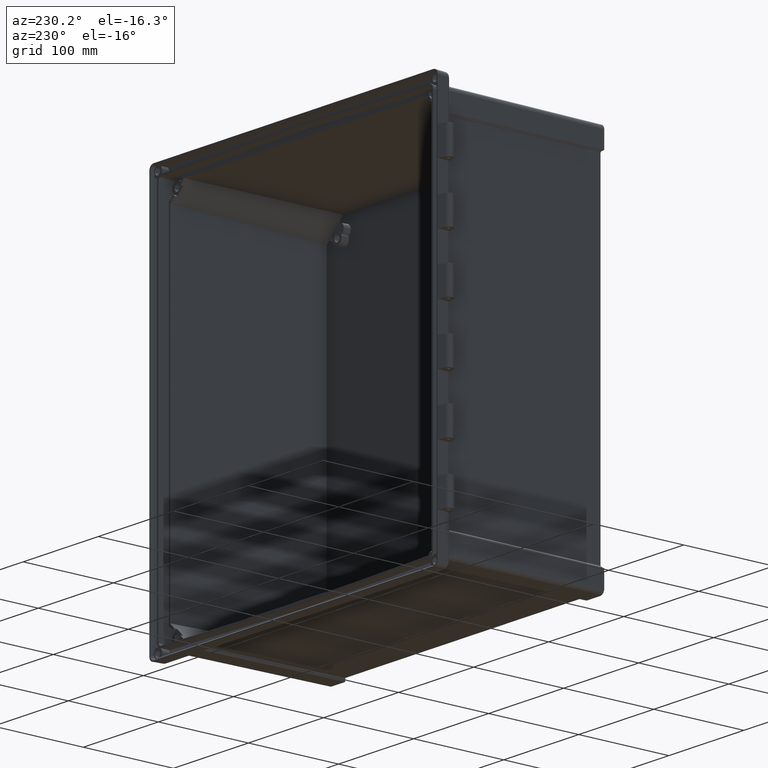
[diagram: clean part render]
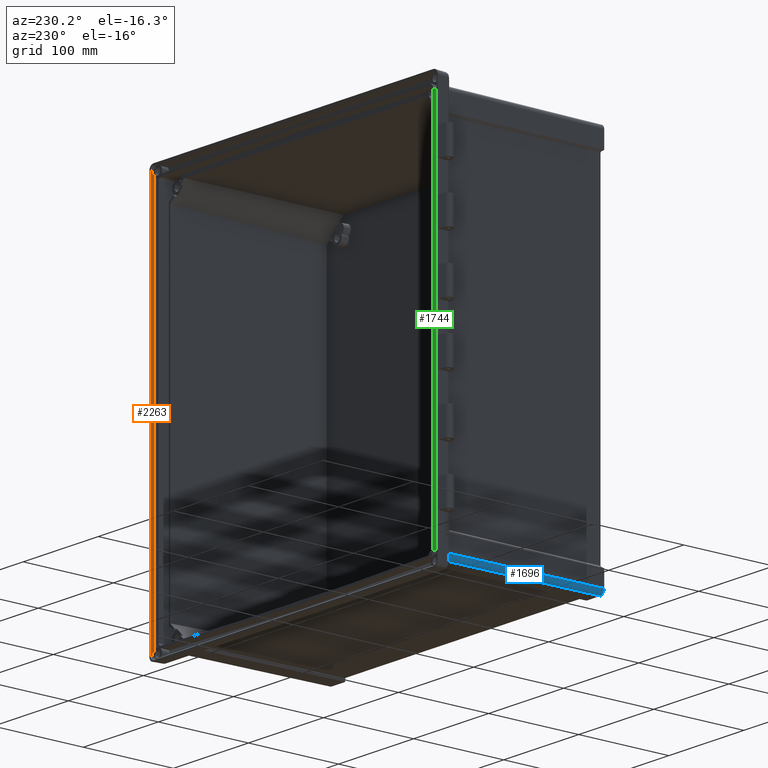
[diagram: same view with three faces highlighted in distinct colors, each labeled with its STEP entity id]
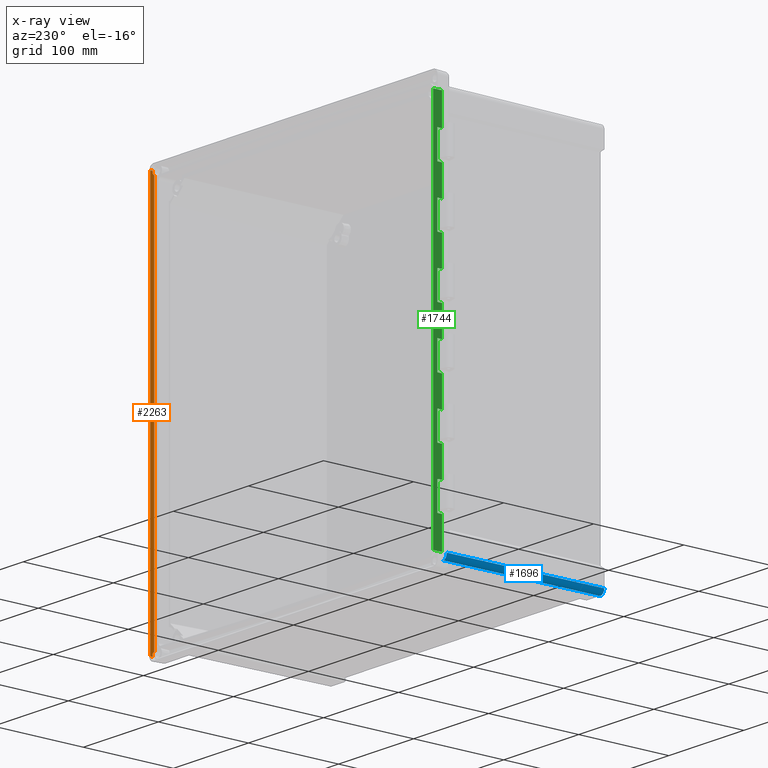
[diagram: x-ray of the same camera — body ghosted, the three highlighted faces saturated]
A machine part, auxiliary view with three faces highlighted in distinct colors.
The next image is the same camera in x-ray (body ghosted, the three faces saturated) — at least one of them is partly hidden behind the body in this view.
Their STEP definitions:

[orange] entity #2263 — the highlighted planar face has unit normal (0.829, -0.5592, 0).
#24 = CARTESIAN_POINT ( 'NONE',  ( 189.5581841873384400, -1.838356594176322700, 215.8485475705510300 ) ) ;
#134 = B_SPLINE_CURVE_WITH_KNOTS ( 'NONE', 3,
 ( #14309, #11943, #5299, #15557 ),
 .UNSPECIFIED., .F., .F.,
 ( 4, 4 ),
 ( 0.3467831372797227100, 1.000000000000000000 ),
 .UNSPECIFIED. ) ;
#462 = VECTOR ( 'NONE', #3768, 1000.000000000000000 ) ;
#1180 = CARTESIAN_POINT ( 'NONE',  ( 190.7981713671038300, 0.0000000000000000000, 215.8485475705510600 ) ) ;
#1328 = CARTESIAN_POINT ( 'NONE',  ( 189.7712524585122400, -1.522469891705538400, 212.9497346746053100 ) ) ;
#2263 = ADVANCED_FACE ( 'NONE', ( #13526 ), #15230, .F. ) ;
#2632 = VECTOR ( 'NONE', #7886, 1000.000000000000000 ) ;
#3067 = ORIENTED_EDGE ( 'NONE', *, *, #12296, .F. ) ;
#3246 = LINE ( 'NONE', #15572, #2632 ) ;
#3472 = CARTESIAN_POINT ( 'NONE',  ( 189.5581842328845400, -1.838356526651445700, -215.8485475705512900 ) ) ;
#3557 = CARTESIAN_POINT ( 'NONE',  ( 189.5581841873384400, -1.838356594176322700, 215.8485475705510300 ) ) ;
#3768 = DIRECTION ( 'NONE',  ( -0.0000000000000000000, -0.0000000000000000000, -1.000000000000000000 ) ) ;
#3935 = CARTESIAN_POINT ( 'NONE',  ( 188.8998933976687600, -2.814312824871977100, -215.9468255399860400 ) ) ;
#4193 = B_SPLINE_CURVE_WITH_KNOTS ( 'NONE', 3,
 ( #10503, #10396, #10444, #9057 ),
 .UNSPECIFIED., .F., .F.,
 ( 4, 4 ),
 ( 0.0000000000000000000, 0.6532168387270402800 ),
 .UNSPECIFIED. ) ;
#4203 = VERTEX_POINT ( 'NONE', #5048 ) ;
#5048 = CARTESIAN_POINT ( 'NONE',  ( 189.5581842328845400, -1.838356526651445700, -215.8485475705512900 ) ) ;
#5299 = CARTESIAN_POINT ( 'NONE',  ( 190.3848423071820300, -0.6127855313921054500, 215.8485475705510600 ) ) ;
#5525 = VERTEX_POINT ( 'NONE', #1180 ) ;
#5581 = CARTESIAN_POINT ( 'NONE',  ( 188.8998933976687600, -2.814312824871977100, -211.7367631637008300 ) ) ;
#5729 = VERTEX_POINT ( 'NONE', #5581 ) ;
#7052 = ORIENTED_EDGE ( 'NONE', *, *, #13855, .T. ) ;
#7314 = CARTESIAN_POINT ( 'NONE',  ( 189.7712524505759300, -1.522469903471579000, -212.9497346635576500 ) ) ;
#7886 = DIRECTION ( 'NONE',  ( 0.0000000000000000000, 0.0000000000000000000, 1.000000000000000000 ) ) ;
#8795 = DIRECTION ( 'NONE',  ( 0.8290375725550402900, -0.5591929034707490100, 0.0000000000000000000 ) ) ;
#8846 = CARTESIAN_POINT ( 'NONE',  ( 190.7981713671038100, 0.0000000000000000000, -208.5000000000000300 ) ) ;
#9050 = CARTESIAN_POINT ( 'NONE',  ( 190.0073293579486600, -1.172471495033557500, 214.4243068339385200 ) ) ;
#9057 = CARTESIAN_POINT ( 'NONE',  ( 189.5581842328845400, -1.838356526651445700, -215.8485475705512900 ) ) ;
#9371 = EDGE_LOOP ( 'NONE', ( #11021, #15266, #3067, #7052, #16147, #11417 ) ) ;
#9497 = VERTEX_POINT ( 'NONE', #15625 ) ;
#9766 = VERTEX_POINT ( 'NONE', #13836 ) ;
#10338 = EDGE_CURVE ( 'NONE', #9766, #5729, #14154, .T. ) ;
#10396 = CARTESIAN_POINT ( 'NONE',  ( 190.3848423223639700, -0.6127855088839471200, -215.8485475705510300 ) ) ;
#10444 = CARTESIAN_POINT ( 'NONE',  ( 189.9715132776241300, -1.225571017767894700, -215.8485475705510300 ) ) ;
#10503 = CARTESIAN_POINT ( 'NONE',  ( 190.7981713671038300, 0.0000000000000000000, -215.8485475705510300 ) ) ;
#10667 = EDGE_CURVE ( 'NONE', #5729, #4203, #15563, .T. ) ;
#11021 = ORIENTED_EDGE ( 'NONE', *, *, #11730, .F. ) ;
#11111 = CARTESIAN_POINT ( 'NONE',  ( 188.8998933976687600, -2.814312824871977100, -211.7367631637008300 ) ) ;
#11417 = ORIENTED_EDGE ( 'NONE', *, *, #10338, .F. ) ;
#11470 = AXIS2_PLACEMENT_3D ( 'NONE', #8846, #8795, #16645 ) ;
#11730 = EDGE_CURVE ( 'NONE', #15263, #9766, #12050, .T. ) ;
#11943 = CARTESIAN_POINT ( 'NONE',  ( 189.9715132472602200, -1.225571062784211400, 215.8485475705510300 ) ) ;
#12050 =( BOUNDED_CURVE ( )  B_SPLINE_CURVE ( 3, ( #24, #9050, #1328, #15215 ),
 .UNSPECIFIED., .F., .F. ) 
 B_SPLINE_CURVE_WITH_KNOTS ( ( 4, 4 ),
 ( 5.977795267660519100, 6.905973540432675000 ),
 .UNSPECIFIED. ) 
 CURVE ( )  GEOMETRIC_REPRESENTATION_ITEM ( )  RATIONAL_B_SPLINE_CURVE ( ( 1.000000000000000000, 0.9294864311827726300, 0.9294864311827726300, 1.000000000000000000 ) ) 
 REPRESENTATION_ITEM ( '' )  );
#12296 = EDGE_CURVE ( 'NONE', #9497, #5525, #3246, .T. ) ;
#13526 = FACE_OUTER_BOUND ( 'NONE', #9371, .T. ) ;
#13836 = CARTESIAN_POINT ( 'NONE',  ( 188.8998933976687600, -2.814312824871977100, 211.7367631637008000 ) ) ;
#13855 = EDGE_CURVE ( 'NONE', #9497, #4203, #4193, .T. ) ;
#14154 = LINE ( 'NONE', #3935, #462 ) ;
#14309 = CARTESIAN_POINT ( 'NONE',  ( 189.5581841873384400, -1.838356594176322700, 215.8485475705510300 ) ) ;
#15215 = CARTESIAN_POINT ( 'NONE',  ( 188.8998933976687600, -2.814312824871977100, 211.7367631637008000 ) ) ;
#15230 = PLANE ( 'NONE',  #11470 ) ;
#15263 = VERTEX_POINT ( 'NONE', #3557 ) ;
#15266 = ORIENTED_EDGE ( 'NONE', *, *, #16064, .T. ) ;
#15557 = CARTESIAN_POINT ( 'NONE',  ( 190.7981713671038300, 0.0000000000000000000, 215.8485475705510600 ) ) ;
#15563 =( BOUNDED_CURVE ( )  B_SPLINE_CURVE ( 3, ( #11111, #7314, #16242, #3472 ),
 .UNSPECIFIED., .F., .F. ) 
 B_SPLINE_CURVE_WITH_KNOTS ( ( 4, 4 ),
 ( 5.660397073926502800, 6.588575338843035000 ),
 .UNSPECIFIED. ) 
 CURVE ( )  GEOMETRIC_REPRESENTATION_ITEM ( )  RATIONAL_B_SPLINE_CURVE ( ( 1.000000000000000000, 0.9294864323548539500, 0.9294864323548539500, 1.000000000000000000 ) ) 
 REPRESENTATION_ITEM ( '' )  );
#15572 = CARTESIAN_POINT ( 'NONE',  ( 190.7981713671038100, 0.0000000000000000000, 215.9468255399860700 ) ) ;
#15625 = CARTESIAN_POINT ( 'NONE',  ( 190.7981713671038300, 0.0000000000000000000, -215.8485475705510300 ) ) ;
#16064 = EDGE_CURVE ( 'NONE', #15263, #5525, #134, .T. ) ;
#16147 = ORIENTED_EDGE ( 'NONE', *, *, #10667, .F. ) ;
#16242 = CARTESIAN_POINT ( 'NONE',  ( 190.0073293536559900, -1.172471501397745400, -214.4243068085335400 ) ) ;
#16645 = DIRECTION ( 'NONE',  ( 0.5591929034707490100, 0.8290375725550402900, 0.0000000000000000000 ) ) ;

[blue] entity #1696 — the highlighted cylindrical surface (edge-blend (fillet) strip) has radius 5.5 mm, axis along (-0.0087, 0.9999, -0.0087).
#83 = VERTEX_POINT ( 'NONE', #2803 ) ;
#362 = DIRECTION ( 'NONE',  ( 0.0000000000000000000, 0.008726535498374132400, 0.9999619230641713100 ) ) ;
#443 = ORIENTED_EDGE ( 'NONE', *, *, #11407, .F. ) ;
#1125 = CARTESIAN_POINT ( 'NONE',  ( -182.1399299418479500, -15.78523649444208100, -210.7175081007526100 ) ) ;
#1696 = ADVANCED_FACE ( 'NONE', ( #15703 ), #16314, .T. ) ;
#2295 = CARTESIAN_POINT ( 'NONE',  ( -184.8494450719406100, -15.41598042782445800, -208.7869165057000200 ) ) ;
#2471 = CARTESIAN_POINT ( 'NONE',  ( -182.5378153881771100, -15.74699823450821700, -210.5734923160550500 ) ) ;
#2803 = CARTESIAN_POINT ( 'NONE',  ( -185.9675407919649200, -15.17832184595812500, -205.4677502151118100 ) ) ;
#3383 = VERTEX_POINT ( 'NONE', #12250 ) ;
#3467 = LINE ( 'NONE', #8430, #14312 ) ;
#3523 = CARTESIAN_POINT ( 'NONE',  ( -185.5814359832609200, -15.26039095654051000, -207.8238858302422300 ) ) ;
#3760 = CARTESIAN_POINT ( 'NONE',  ( -183.2920237207613600, -15.66403469148474800, -210.1989809831881100 ) ) ;
#3785 = EDGE_LOOP ( 'NONE', ( #9993, #13639, #8654, #7060, #443 ) ) ;
#4009 = VERTEX_POINT ( 'NONE', #2295 ) ;
#4674 = B_SPLINE_CURVE_WITH_KNOTS ( 'NONE', 3,
 ( #8854, #11452, #13875, #11227, #3760, #2471, #1125, #4909, #12529, #8799 ),
 .UNSPECIFIED., .F., .F.,
 ( 4, 2, 2, 2, 4 ),
 ( 2.780973288783981700E-017, 0.001267848651906167300, 0.002535697303812306900, 0.003803545955718446400, 0.005071394607624586000 ),
 .UNSPECIFIED. ) ;
#4701 = AXIS2_PLACEMENT_3D ( 'NONE', #14483, #15781, #362 ) ;
#4909 = CARTESIAN_POINT ( 'NONE',  ( -181.3095735282356600, -15.85973794767242900, -210.9125559187355900 ) ) ;
#5058 = CARTESIAN_POINT ( 'NONE',  ( -185.9675407919649200, -15.17832184595812500, -205.4677502151118100 ) ) ;
#5096 = CARTESIAN_POINT ( 'NONE',  ( -184.4296775048489700, -191.4000000000000100, -203.9298869279958200 ) ) ;
#5522 = CARTESIAN_POINT ( 'NONE',  ( -185.9790398438129300, -13.86066101692819800, -205.4792492669597800 ) ) ;
#6387 = EDGE_CURVE ( 'NONE', #4009, #6973, #4674, .T. ) ;
#6807 = CARTESIAN_POINT ( 'NONE',  ( -184.4296775048489700, -191.4000000000000100, -207.1516404672779600 ) ) ;
#6973 = VERTEX_POINT ( 'NONE', #16223 ) ;
#7060 = ORIENTED_EDGE ( 'NONE', *, *, #6387, .T. ) ;
#8150 = DIRECTION ( 'NONE',  ( 0.008726203243944196500, -0.9999238504775704900, 0.008726203243944236400 ) ) ;
#8430 = CARTESIAN_POINT ( 'NONE',  ( -180.4496703296807700, -17.25007151201291600, -210.9494609065334900 ) ) ;
#8654 = ORIENTED_EDGE ( 'NONE', *, *, #16296, .F. ) ;
#8799 = CARTESIAN_POINT ( 'NONE',  ( -180.4611737478569200, -15.93191035133308600, -210.9609643247096400 ) ) ;
#8854 = CARTESIAN_POINT ( 'NONE',  ( -184.8494450719406100, -15.41598042782445800, -208.7869165057000200 ) ) ;
#9068 = EDGE_CURVE ( 'NONE', #83, #9360, #14577, .T. ) ;
#9360 = VERTEX_POINT ( 'NONE', #5096 ) ;
#9993 = ORIENTED_EDGE ( 'NONE', *, *, #10507, .F. ) ;
#10507 = EDGE_CURVE ( 'NONE', #9360, #3383, #14523, .T. ) ;
#10679 = CARTESIAN_POINT ( 'NONE',  ( -182.1516404672781600, -191.4000000000000100, -209.4296775048487400 ) ) ;
#11227 = CARTESIAN_POINT ( 'NONE',  ( -183.6528740278698100, -15.61861258000945300, -209.9645107338429300 ) ) ;
#11407 = EDGE_CURVE ( 'NONE', #3383, #6973, #3467, .T. ) ;
#11452 = CARTESIAN_POINT ( 'NONE',  ( -184.5921602001369600, -15.47066801554474900, -209.1254087192593500 ) ) ;
#11786 =( BOUNDED_CURVE ( )  B_SPLINE_CURVE ( 3, ( #15210, #3523, #16464, #5058 ),
 .UNSPECIFIED., .F., .F. ) 
 B_SPLINE_CURVE_WITH_KNOTS ( ( 4, 4 ),
 ( 5.674198576167061200, 6.322526357496623300 ),
 .UNSPECIFIED. ) 
 CURVE ( )  GEOMETRIC_REPRESENTATION_ITEM ( )  RATIONAL_B_SPLINE_CURVE ( ( 1.000000000000000000, 0.9652782481327500900, 0.9652782481327500900, 1.000000000000000000 ) ) 
 REPRESENTATION_ITEM ( '' )  );
#12250 = CARTESIAN_POINT ( 'NONE',  ( -178.9298869279959900, -191.4000000000000100, -209.4296775048487400 ) ) ;
#12529 = CARTESIAN_POINT ( 'NONE',  ( -180.8882911834568600, -15.89505826412070500, -210.9612859280025500 ) ) ;
#13639 = ORIENTED_EDGE ( 'NONE', *, *, #9068, .F. ) ;
#13749 = VECTOR ( 'NONE', #8150, 1000.000000000000000 ) ;
#13875 = CARTESIAN_POINT ( 'NONE',  ( -184.3009426615563800, -15.52207892145244400, -209.4281575681194200 ) ) ;
#14312 = VECTOR ( 'NONE', #14813, 1000.000000000000000 ) ;
#14483 = CARTESIAN_POINT ( 'NONE',  ( -180.4496703296807700, -17.20207556677186400, -205.4496703296805700 ) ) ;
#14485 = CARTESIAN_POINT ( 'NONE',  ( -184.4296775048489700, -191.4000000000000100, -203.9298869279958200 ) ) ;
#14523 =( BOUNDED_CURVE ( )  B_SPLINE_CURVE ( 3, ( #14485, #6807, #10679, #15783 ),
 .UNSPECIFIED., .F., .F. ) 
 B_SPLINE_CURVE_WITH_KNOTS ( ( 4, 4 ),
 ( 5.497825219993078600, 7.068545394366094700 ),
 .UNSPECIFIED. ) 
 CURVE ( )  GEOMETRIC_REPRESENTATION_ITEM ( )  RATIONAL_B_SPLINE_CURVE ( ( 1.000000000000000000, 0.8047558030806119000, 0.8047558030806119000, 1.000000000000000000 ) ) 
 REPRESENTATION_ITEM ( '' )  );
#14577 = LINE ( 'NONE', #5522, #13749 ) ;
#14813 = DIRECTION ( 'NONE',  ( -0.008726203243944198300, 0.9999238504775704900, -0.008726203243944236400 ) ) ;
#15210 = CARTESIAN_POINT ( 'NONE',  ( -184.8494450719406100, -15.41598042782445800, -208.7869165057000200 ) ) ;
#15703 = FACE_OUTER_BOUND ( 'NONE', #3785, .T. ) ;
#15781 = DIRECTION ( 'NONE',  ( -0.008726203243944198300, 0.9999238504775704900, -0.008726203243944236400 ) ) ;
#15783 = CARTESIAN_POINT ( 'NONE',  ( -178.9298869279959900, -191.4000000000000100, -209.4296775048487400 ) ) ;
#16223 = CARTESIAN_POINT ( 'NONE',  ( -180.4611737478569200, -15.93191035133308600, -210.9609643247096400 ) ) ;
#16296 = EDGE_CURVE ( 'NONE', #4009, #83, #11786, .T. ) ;
#16314 = CYLINDRICAL_SURFACE ( 'NONE', #4701, 5.499999999999988500 ) ;
#16464 = CARTESIAN_POINT ( 'NONE',  ( -185.9675407919649200, -15.17832184595812700, -206.6776994682584000 ) ) ;

[green] entity #1744 — the highlighted planar face has unit normal (-1, 0.0087, -0).
#152 = CARTESIAN_POINT ( 'NONE',  ( -184.0290792182383100, -6.389289219213843300, -141.0999999999999900 ) ) ;
#203 = CARTESIAN_POINT ( 'NONE',  ( -184.0290792182383100, -6.389289219213843300, 171.4000000000000100 ) ) ;
#301 = EDGE_CURVE ( 'NONE', #9229, #10463, #13098, .T. ) ;
#323 = CARTESIAN_POINT ( 'NONE',  ( -183.9995013393175900, -3.000000000000000000, 214.9277636626388500 ) ) ;
#492 = CARTESIAN_POINT ( 'NONE',  ( -184.0290792182382500, -6.389289219213853100, -141.0999999999999700 ) ) ;
#754 = VERTEX_POINT ( 'NONE', #8051 ) ;
#858 = VERTEX_POINT ( 'NONE', #4549 ) ;
#1045 = CARTESIAN_POINT ( 'NONE',  ( -184.0290792182383100, -6.389289219213843300, 46.39999999999999900 ) ) ;
#1211 = VERTEX_POINT ( 'NONE', #15983 ) ;
#1228 = VECTOR ( 'NONE', #2649, 1000.000000000000000 ) ;
#1276 = CARTESIAN_POINT ( 'NONE',  ( -183.9680683551406200, 0.6018632263667831300, -205.1040137082033800 ) ) ;
#1301 = CARTESIAN_POINT ( 'NONE',  ( -184.0736057796017600, -11.49152778075238900, 214.9277636626388500 ) ) ;
#1417 = ORIENTED_EDGE ( 'NONE', *, *, #5571, .T. ) ;
#1557 = CARTESIAN_POINT ( 'NONE',  ( -184.0736057796017600, -11.49152778075238900, 205.2077250463774200 ) ) ;
#1680 = VECTOR ( 'NONE', #9187, 1000.000000000000000 ) ;
#1744 = ADVANCED_FACE ( 'NONE', ( #6471 ), #4163, .T. ) ;
#2001 = CARTESIAN_POINT ( 'NONE',  ( -184.0290792182383100, -6.389289219213843300, 46.39999999999999900 ) ) ;
#2050 = EDGE_CURVE ( 'NONE', #9620, #4819, #3101, .T. ) ;
#2052 = DIRECTION ( 'NONE',  ( 0.008726535498373265100, 0.9999619230641713100, -0.0000000000000000000 ) ) ;
#2160 = CARTESIAN_POINT ( 'NONE',  ( -184.0290792182383100, -6.389289219213843300, -16.10000000000000100 ) ) ;
#2167 = ORIENTED_EDGE ( 'NONE', *, *, #5306, .F. ) ;
#2213 = VERTEX_POINT ( 'NONE', #16696 ) ;
#2314 = VECTOR ( 'NONE', #14335, 1000.000000000000000 ) ;
#2438 = VECTOR ( 'NONE', #5147, 1000.000000000000000 ) ;
#2468 = DIRECTION ( 'NONE',  ( -1.328265622643246300E-016, 2.823315737335354300E-017, 1.000000000000000000 ) ) ;
#2524 = VERTEX_POINT ( 'NONE', #3296 ) ;
#2579 = EDGE_CURVE ( 'NONE', #5071, #14822, #2681, .T. ) ;
#2643 = EDGE_CURVE ( 'NONE', #10065, #14719, #7332, .T. ) ;
#2649 = DIRECTION ( 'NONE',  ( 0.008726535498373265100, 0.9999619230641713100, -0.0000000000000000000 ) ) ;
#2676 = VECTOR ( 'NONE', #3980, 1000.000000000000000 ) ;
#2681 = LINE ( 'NONE', #1045, #8748 ) ;
#2744 = LINE ( 'NONE', #15661, #6995 ) ;
#2778 = ORIENTED_EDGE ( 'NONE', *, *, #11195, .T. ) ;
#2799 = CARTESIAN_POINT ( 'NONE',  ( -184.0290792182383100, -6.389289219213843300, -171.3499999999999900 ) ) ;
#2812 = DIRECTION ( 'NONE',  ( -1.328265622643246300E-016, 2.823315737335354300E-017, 1.000000000000000000 ) ) ;
#2827 = LINE ( 'NONE', #15050, #5467 ) ;
#2868 = LINE ( 'NONE', #2799, #16162 ) ;
#2910 = EDGE_CURVE ( 'NONE', #754, #8821, #9375, .T. ) ;
#3040 = ORIENTED_EDGE ( 'NONE', *, *, #13911, .T. ) ;
#3101 = LINE ( 'NONE', #12201, #16399 ) ;
#3167 = ORIENTED_EDGE ( 'NONE', *, *, #9990, .T. ) ;
#3207 = CARTESIAN_POINT ( 'NONE',  ( -184.0290792182383100, -6.389289219213843300, 16.14999999999999900 ) ) ;
#3296 = CARTESIAN_POINT ( 'NONE',  ( -183.9881564111895500, -1.700000000000000200, -205.1237541859038900 ) ) ;
#3297 = DIRECTION ( 'NONE',  ( -0.0000000000000000000, -0.0000000000000000000, -1.000000000000000000 ) ) ;
#3329 = DIRECTION ( 'NONE',  ( -0.0000000000000000000, -0.0000000000000000000, -1.000000000000000000 ) ) ;
#3393 = CARTESIAN_POINT ( 'NONE',  ( -184.0736057796017300, -11.49152778075240100, 108.8999999999999900 ) ) ;
#3444 = VERTEX_POINT ( 'NONE', #3207 ) ;
#3473 = EDGE_CURVE ( 'NONE', #15334, #2524, #9953, .T. ) ;
#3520 = LINE ( 'NONE', #4227, #2314 ) ;
#3641 = VECTOR ( 'NONE', #2812, 1000.000000000000000 ) ;
#3675 = CARTESIAN_POINT ( 'NONE',  ( -184.0736057796017300, -11.49152778075240100, 171.4000000000000100 ) ) ;
#3822 = LINE ( 'NONE', #15879, #6047 ) ;
#3894 = CARTESIAN_POINT ( 'NONE',  ( -184.0736057796017300, -11.49152778075240100, 46.39999999999999900 ) ) ;
#3980 = DIRECTION ( 'NONE',  ( -0.0000000000000000000, -0.0000000000000000000, -1.000000000000000000 ) ) ;
#3995 = EDGE_CURVE ( 'NONE', #15607, #9194, #13494, .T. ) ;
#4163 = PLANE ( 'NONE',  #16122 ) ;
#4227 = CARTESIAN_POINT ( 'NONE',  ( -184.0736057796017600, -11.49152778075238900, 214.9277636626388500 ) ) ;
#4331 = CARTESIAN_POINT ( 'NONE',  ( -184.0290792182383100, -6.389289219213843300, 108.8999999999999900 ) ) ;
#4444 = LINE ( 'NONE', #15622, #3641 ) ;
#4513 = ORIENTED_EDGE ( 'NONE', *, *, #4675, .T. ) ;
#4545 = CARTESIAN_POINT ( 'NONE',  ( -184.0290792182382500, -6.389289219213852200, -108.8500000000000400 ) ) ;
#4549 = CARTESIAN_POINT ( 'NONE',  ( -184.0736057796017300, -11.49152778075240100, 16.14999999999999900 ) ) ;
#4572 = LINE ( 'NONE', #2160, #15027 ) ;
#4656 = DIRECTION ( 'NONE',  ( 0.008726535498373265100, 0.9999619230641713100, -0.0000000000000000000 ) ) ;
#4675 = EDGE_CURVE ( 'NONE', #13421, #7960, #16323, .T. ) ;
#4746 = CARTESIAN_POINT ( 'NONE',  ( -184.0290792182383100, -6.389289219213843300, -16.10000000000000100 ) ) ;
#4790 = CARTESIAN_POINT ( 'NONE',  ( -183.9881564111895500, -1.700000000000000200, -210.5395319633083200 ) ) ;
#4819 = VERTEX_POINT ( 'NONE', #6523 ) ;
#4912 = ORIENTED_EDGE ( 'NONE', *, *, #11103, .F. ) ;
#5071 = VERTEX_POINT ( 'NONE', #3894 ) ;
#5147 = DIRECTION ( 'NONE',  ( -1.328265622643246300E-016, 2.823315737335354300E-017, 1.000000000000000000 ) ) ;
#5234 = CARTESIAN_POINT ( 'NONE',  ( -184.0290792182382800, -6.389289219213849500, -16.10000000000000100 ) ) ;
#5241 = VECTOR ( 'NONE', #6526, 1000.000000000000000 ) ;
#5255 = CARTESIAN_POINT ( 'NONE',  ( -184.0290792182383100, -6.389289219213843300, 78.64999999999999100 ) ) ;
#5257 = LINE ( 'NONE', #11601, #6061 ) ;
#5282 = ORIENTED_EDGE ( 'NONE', *, *, #13798, .T. ) ;
#5283 = ORIENTED_EDGE ( 'NONE', *, *, #16236, .T. ) ;
#5306 = EDGE_CURVE ( 'NONE', #12770, #8476, #12256, .T. ) ;
#5444 = DIRECTION ( 'NONE',  ( -0.9999619230641713100, 0.008726535498373953800, -1.330678822858867300E-016 ) ) ;
#5467 = VECTOR ( 'NONE', #11271, 1000.000000000000000 ) ;
#5468 = ORIENTED_EDGE ( 'NONE', *, *, #14893, .F. ) ;
#5571 = EDGE_CURVE ( 'NONE', #8875, #4819, #11440, .T. ) ;
#5892 = LINE ( 'NONE', #1301, #2438 ) ;
#6028 = DIRECTION ( 'NONE',  ( 0.008726535498373265100, 0.9999619230641713100, -0.0000000000000000000 ) ) ;
#6047 = VECTOR ( 'NONE', #15767, 1000.000000000000000 ) ;
#6061 = VECTOR ( 'NONE', #10397, 1000.000000000000000 ) ;
#6141 = DIRECTION ( 'NONE',  ( -0.0000000000000000000, -0.0000000000000000000, -1.000000000000000000 ) ) ;
#6402 = VERTEX_POINT ( 'NONE', #12751 ) ;
#6431 = DIRECTION ( 'NONE',  ( 0.008726535498373265100, 0.9999619230641713100, -0.0000000000000000000 ) ) ;
#6471 = FACE_OUTER_BOUND ( 'NONE', #16685, .T. ) ;
#6523 = CARTESIAN_POINT ( 'NONE',  ( -184.0290792182383100, -6.389289219213843300, 78.64999999999999100 ) ) ;
#6526 = DIRECTION ( 'NONE',  ( -0.008726214641665659300, -0.9999251565270831400, -0.008575227245724910400 ) ) ;
#6547 = VECTOR ( 'NONE', #8302, 1000.000000000000000 ) ;
#6604 = ORIENTED_EDGE ( 'NONE', *, *, #11314, .T. ) ;
#6690 = LINE ( 'NONE', #13011, #1228 ) ;
#6995 = VECTOR ( 'NONE', #7968, 1000.000000000000000 ) ;
#7197 = CARTESIAN_POINT ( 'NONE',  ( -184.0736057796017300, -11.49152778075240100, 78.64999999999999100 ) ) ;
#7332 = LINE ( 'NONE', #7467, #13735 ) ;
#7467 = CARTESIAN_POINT ( 'NONE',  ( -184.0736057796017600, -11.49152778075238900, 214.9277636626388500 ) ) ;
#7555 = EDGE_CURVE ( 'NONE', #14719, #8821, #2744, .T. ) ;
#7903 = VECTOR ( 'NONE', #10832, 1000.000000000000000 ) ;
#7960 = VERTEX_POINT ( 'NONE', #10331 ) ;
#7968 = DIRECTION ( 'NONE',  ( 0.008726535498373265100, 0.9999619230641713100, -0.0000000000000000000 ) ) ;
#8000 = DIRECTION ( 'NONE',  ( -0.008726535498373953800, -0.9999619230641713100, 0.0000000000000000000 ) ) ;
#8051 = CARTESIAN_POINT ( 'NONE',  ( -184.0290792182382800, -6.389289219213851300, -78.59999999999998000 ) ) ;
#8247 = VECTOR ( 'NONE', #3297, 1000.000000000000000 ) ;
#8249 = LINE ( 'NONE', #1276, #5241 ) ;
#8302 = DIRECTION ( 'NONE',  ( -0.0000000000000000000, -0.0000000000000000000, -1.000000000000000000 ) ) ;
#8476 = VERTEX_POINT ( 'NONE', #8756 ) ;
#8531 = CARTESIAN_POINT ( 'NONE',  ( -184.0290792182382800, -6.389289219213846800, 46.39999999999999900 ) ) ;
#8534 = CARTESIAN_POINT ( 'NONE',  ( -184.0290792182383100, -6.389289219213843300, -46.35000000000000100 ) ) ;
#8657 = ORIENTED_EDGE ( 'NONE', *, *, #12794, .T. ) ;
#8748 = VECTOR ( 'NONE', #12680, 1000.000000000000000 ) ;
#8756 = CARTESIAN_POINT ( 'NONE',  ( -184.0290792182382800, -6.389289219213850400, -46.35000000000003000 ) ) ;
#8794 = ORIENTED_EDGE ( 'NONE', *, *, #16262, .F. ) ;
#8821 = VERTEX_POINT ( 'NONE', #4545 ) ;
#8875 = VERTEX_POINT ( 'NONE', #7197 ) ;
#9094 = VECTOR ( 'NONE', #16634, 1000.000000000000000 ) ;
#9187 = DIRECTION ( 'NONE',  ( 0.008726535498373265100, 0.9999619230641713100, -0.0000000000000000000 ) ) ;
#9194 = VERTEX_POINT ( 'NONE', #14585 ) ;
#9229 = VERTEX_POINT ( 'NONE', #3675 ) ;
#9269 = ORIENTED_EDGE ( 'NONE', *, *, #2579, .F. ) ;
#9356 = CARTESIAN_POINT ( 'NONE',  ( -184.0736057796017300, -11.49152778075240100, 141.1500000000000100 ) ) ;
#9375 = LINE ( 'NONE', #15997, #6547 ) ;
#9620 = VERTEX_POINT ( 'NONE', #4331 ) ;
#9724 = LINE ( 'NONE', #203, #2676 ) ;
#9801 = ORIENTED_EDGE ( 'NONE', *, *, #12631, .F. ) ;
#9805 = CARTESIAN_POINT ( 'NONE',  ( -184.0736057796017100, -11.49152778075239600, -108.8500000000000400 ) ) ;
#9953 = LINE ( 'NONE', #4790, #16383 ) ;
#9990 = EDGE_CURVE ( 'NONE', #1211, #858, #3520, .T. ) ;
#10058 = DIRECTION ( 'NONE',  ( -1.328265622643246300E-016, 2.823315737335354300E-017, 1.000000000000000000 ) ) ;
#10065 = VERTEX_POINT ( 'NONE', #10690 ) ;
#10331 = CARTESIAN_POINT ( 'NONE',  ( -184.0290792182383100, -6.389289219213843300, 141.1500000000000100 ) ) ;
#10397 = DIRECTION ( 'NONE',  ( 0.008726214641665662800, 0.9999251565270831400, -0.008575227245724910400 ) ) ;
#10415 = CARTESIAN_POINT ( 'NONE',  ( -184.0736057796017100, -11.49152778075239700, -171.3500000000000200 ) ) ;
#10460 = EDGE_CURVE ( 'NONE', #10065, #15607, #11535, .T. ) ;
#10463 = VERTEX_POINT ( 'NONE', #1557 ) ;
#10690 = CARTESIAN_POINT ( 'NONE',  ( -184.0736057796017100, -11.49152778075239700, -141.0999999999999700 ) ) ;
#10779 = CARTESIAN_POINT ( 'NONE',  ( -184.0736057796017600, -11.49152778075238900, 214.9277636626388500 ) ) ;
#10792 = DIRECTION ( 'NONE',  ( -0.0000000000000000000, -0.0000000000000000000, -1.000000000000000000 ) ) ;
#10832 = DIRECTION ( 'NONE',  ( -1.328265622643246300E-016, 2.823315737335354300E-017, 1.000000000000000000 ) ) ;
#10993 = CARTESIAN_POINT ( 'NONE',  ( -184.0290792182383100, -6.389289219213843300, 108.8999999999999900 ) ) ;
#11027 = LINE ( 'NONE', #8534, #15270 ) ;
#11103 = EDGE_CURVE ( 'NONE', #13941, #7960, #9724, .T. ) ;
#11195 = EDGE_CURVE ( 'NONE', #13335, #9194, #2868, .T. ) ;
#11271 = DIRECTION ( 'NONE',  ( 0.008726535498373265100, 0.9999619230641713100, -0.0000000000000000000 ) ) ;
#11272 = ORIENTED_EDGE ( 'NONE', *, *, #3995, .F. ) ;
#11314 = EDGE_CURVE ( 'NONE', #6402, #13335, #14714, .T. ) ;
#11351 = ORIENTED_EDGE ( 'NONE', *, *, #7555, .T. ) ;
#11440 = LINE ( 'NONE', #5255, #15063 ) ;
#11462 = VECTOR ( 'NONE', #6028, 1000.000000000000000 ) ;
#11464 = ORIENTED_EDGE ( 'NONE', *, *, #12167, .T. ) ;
#11535 = LINE ( 'NONE', #152, #1680 ) ;
#11601 = CARTESIAN_POINT ( 'NONE',  ( -184.0002341319807000, -3.083969722092028100, 205.1356229290698800 ) ) ;
#11644 = LINE ( 'NONE', #2001, #8247 ) ;
#11650 = ORIENTED_EDGE ( 'NONE', *, *, #2050, .F. ) ;
#11936 = CARTESIAN_POINT ( 'NONE',  ( -184.0290792182383100, -6.389289219213843300, 171.4000000000000100 ) ) ;
#12014 = VERTEX_POINT ( 'NONE', #3393 ) ;
#12167 = EDGE_CURVE ( 'NONE', #12014, #13421, #5892, .T. ) ;
#12201 = CARTESIAN_POINT ( 'NONE',  ( -184.0290792182383100, -6.389289219213843300, 108.8999999999999900 ) ) ;
#12251 = ORIENTED_EDGE ( 'NONE', *, *, #15969, .T. ) ;
#12256 = LINE ( 'NONE', #4746, #12668 ) ;
#12286 = EDGE_CURVE ( 'NONE', #9229, #13941, #6690, .T. ) ;
#12361 = EDGE_CURVE ( 'NONE', #15944, #2213, #4444, .T. ) ;
#12452 = VECTOR ( 'NONE', #2468, 1000.000000000000000 ) ;
#12563 = EDGE_CURVE ( 'NONE', #12014, #9620, #14884, .T. ) ;
#12631 = EDGE_CURVE ( 'NONE', #15944, #754, #2827, .T. ) ;
#12668 = VECTOR ( 'NONE', #3329, 1000.000000000000000 ) ;
#12680 = DIRECTION ( 'NONE',  ( 0.008726535498373265100, 0.9999619230641713100, -0.0000000000000000000 ) ) ;
#12751 = CARTESIAN_POINT ( 'NONE',  ( -184.0736057796017100, -11.49152778075239900, -205.2077250463775600 ) ) ;
#12770 = VERTEX_POINT ( 'NONE', #5234 ) ;
#12794 = EDGE_CURVE ( 'NONE', #10463, #15334, #5257, .T. ) ;
#12829 = ORIENTED_EDGE ( 'NONE', *, *, #12563, .F. ) ;
#12902 = CARTESIAN_POINT ( 'NONE',  ( -184.0736057796017300, -11.49152778075239600, -78.59999999999998000 ) ) ;
#13011 = CARTESIAN_POINT ( 'NONE',  ( -184.0290792182383100, -6.389289219213843300, 171.4000000000000100 ) ) ;
#13098 = LINE ( 'NONE', #16158, #14921 ) ;
#13125 = ORIENTED_EDGE ( 'NONE', *, *, #3473, .T. ) ;
#13301 = VECTOR ( 'NONE', #6141, 1000.000000000000000 ) ;
#13335 = VERTEX_POINT ( 'NONE', #10415 ) ;
#13421 = VERTEX_POINT ( 'NONE', #9356 ) ;
#13494 = LINE ( 'NONE', #13854, #13301 ) ;
#13650 = LINE ( 'NONE', #16697, #12452 ) ;
#13735 = VECTOR ( 'NONE', #10058, 1000.000000000000000 ) ;
#13798 = EDGE_CURVE ( 'NONE', #2524, #6402, #8249, .T. ) ;
#13854 = CARTESIAN_POINT ( 'NONE',  ( -184.0290792182383100, -6.389289219213843300, -141.0999999999999900 ) ) ;
#13869 = ORIENTED_EDGE ( 'NONE', *, *, #10460, .F. ) ;
#13911 = EDGE_CURVE ( 'NONE', #858, #3444, #3822, .T. ) ;
#13941 = VERTEX_POINT ( 'NONE', #11936 ) ;
#14207 = DIRECTION ( 'NONE',  ( 0.008726535498373265100, 0.9999619230641713100, -0.0000000000000000000 ) ) ;
#14335 = DIRECTION ( 'NONE',  ( -1.328265622643246300E-016, 2.823315737335354300E-017, 1.000000000000000000 ) ) ;
#14585 = CARTESIAN_POINT ( 'NONE',  ( -184.0290792182382500, -6.389289219213854000, -171.3500000000000200 ) ) ;
#14610 = ORIENTED_EDGE ( 'NONE', *, *, #2643, .T. ) ;
#14714 = LINE ( 'NONE', #10779, #7903 ) ;
#14719 = VERTEX_POINT ( 'NONE', #9805 ) ;
#14822 = VERTEX_POINT ( 'NONE', #8531 ) ;
#14836 = DIRECTION ( 'NONE',  ( -1.328265622643246300E-016, 2.823315737335354300E-017, 1.000000000000000000 ) ) ;
#14884 = LINE ( 'NONE', #10993, #11462 ) ;
#14893 = EDGE_CURVE ( 'NONE', #1211, #12770, #4572, .T. ) ;
#14921 = VECTOR ( 'NONE', #14836, 1000.000000000000000 ) ;
#14960 = CARTESIAN_POINT ( 'NONE',  ( -183.9881564111896100, -1.700000000000000200, 205.1237541859037800 ) ) ;
#15027 = VECTOR ( 'NONE', #2052, 1000.000000000000000 ) ;
#15050 = CARTESIAN_POINT ( 'NONE',  ( -184.0290792182383100, -6.389289219213843300, -78.60000000000000900 ) ) ;
#15063 = VECTOR ( 'NONE', #14207, 1000.000000000000000 ) ;
#15095 = ORIENTED_EDGE ( 'NONE', *, *, #12361, .T. ) ;
#15270 = VECTOR ( 'NONE', #4656, 1000.000000000000000 ) ;
#15334 = VERTEX_POINT ( 'NONE', #14960 ) ;
#15394 = ORIENTED_EDGE ( 'NONE', *, *, #2910, .F. ) ;
#15607 = VERTEX_POINT ( 'NONE', #492 ) ;
#15622 = CARTESIAN_POINT ( 'NONE',  ( -184.0736057796017600, -11.49152778075238900, 214.9277636626388500 ) ) ;
#15661 = CARTESIAN_POINT ( 'NONE',  ( -184.0290792182383100, -6.389289219213843300, -108.8500000000000100 ) ) ;
#15767 = DIRECTION ( 'NONE',  ( 0.008726535498373265100, 0.9999619230641713100, -0.0000000000000000000 ) ) ;
#15879 = CARTESIAN_POINT ( 'NONE',  ( -184.0290792182383100, -6.389289219213843300, 16.14999999999999900 ) ) ;
#15944 = VERTEX_POINT ( 'NONE', #12902 ) ;
#15969 = EDGE_CURVE ( 'NONE', #5071, #8875, #13650, .T. ) ;
#15983 = CARTESIAN_POINT ( 'NONE',  ( -184.0736057796017300, -11.49152778075239400, -16.10000000000000100 ) ) ;
#15997 = CARTESIAN_POINT ( 'NONE',  ( -184.0290792182383100, -6.389289219213843300, -78.60000000000000900 ) ) ;
#16088 = ORIENTED_EDGE ( 'NONE', *, *, #12286, .F. ) ;
#16122 = AXIS2_PLACEMENT_3D ( 'NONE', #323, #5444, #8000 ) ;
#16158 = CARTESIAN_POINT ( 'NONE',  ( -184.0736057796017600, -11.49152778075238900, 214.9277636626388500 ) ) ;
#16162 = VECTOR ( 'NONE', #6431, 1000.000000000000000 ) ;
#16236 = EDGE_CURVE ( 'NONE', #2213, #8476, #11027, .T. ) ;
#16254 = DIRECTION ( 'NONE',  ( 1.330729492960375800E-016, 0.0000000000000000000, -1.000000000000000000 ) ) ;
#16262 = EDGE_CURVE ( 'NONE', #14822, #3444, #11644, .T. ) ;
#16323 = LINE ( 'NONE', #16536, #9094 ) ;
#16383 = VECTOR ( 'NONE', #16254, 1000.000000000000000 ) ;
#16399 = VECTOR ( 'NONE', #10792, 1000.000000000000000 ) ;
#16536 = CARTESIAN_POINT ( 'NONE',  ( -184.0290792182383100, -6.389289219213843300, 141.1500000000000100 ) ) ;
#16591 = ORIENTED_EDGE ( 'NONE', *, *, #301, .T. ) ;
#16634 = DIRECTION ( 'NONE',  ( 0.008726535498373265100, 0.9999619230641713100, -0.0000000000000000000 ) ) ;
#16685 = EDGE_LOOP ( 'NONE', ( #11272, #13869, #14610, #11351, #15394, #9801, #15095, #5283, #2167, #5468, #3167, #3040, #8794, #9269, #12251, #1417, #11650, #12829, #11464, #4513, #4912, #16088, #16591, #8657, #13125, #5282, #6604, #2778 ) ) ;
#16696 = CARTESIAN_POINT ( 'NONE',  ( -184.0736057796017300, -11.49152778075239400, -46.35000000000003000 ) ) ;
#16697 = CARTESIAN_POINT ( 'NONE',  ( -184.0736057796017600, -11.49152778075238900, 214.9277636626388500 ) ) ;